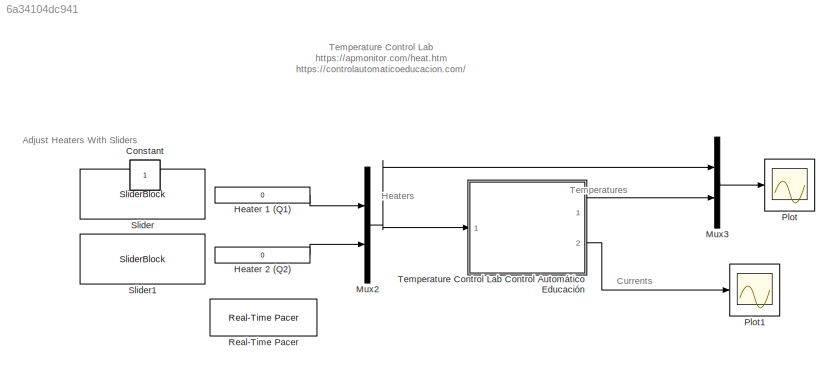
MODEL slx_6a34104dc941
KIND model
CONFIG AbsTol = auto
CONFIG EnableMultiTasking = on
CONFIG FixedStep = auto
CONFIG MaxStep = auto
CONFIG MinStep = auto
CONFIG RelTol = 1e-3
CONFIG SampleTimeConstraint = Unconstrained
CONFIG Solver = VariableStepAuto
CONFIG SolverName = VariableStepAuto
CONFIG StartFcn = clear all
CONFIG StartTime = 0.0
CONFIG StopTime = 500
BLOCK [Constant] 1
  IOType = siggen
BLOCK [Constant] Constant
  IOType = siggen
BLOCK [Constant] Heater 1 (Q1)
  Value = 0
BLOCK [Constant] Heater 2 (Q2)
  Value = 0
BLOCK [Mux] Mux2
  DisplayOption = bar
  Inputs = 2
  Ports = [2, 1]
BLOCK [Mux] Mux3
  DisplayOption = bar
  Inputs = 2
  Ports = [2, 1]
BLOCK [Scope] Plot
  Floating = off
  NumInputPorts = 1
  Ports = [1]
  ScopeSpecificationString = Simulink.scopes.TimeScopeBlockCfg('CurrentConfiguration', extmgr.ConfigurationSet(extmgr.Configuration('Core','General UI',true),extmgr.Configuration('Core','Source UI',true),extmgr.Configuration('Sources','WiredSimulink',true,'DataLoggingLimitDataPoints',true,'DataLoggingSaveFormat','Array','DataLoggingDecimation','1','DataLoggingDecimateData',true),extmgr.Configuration('Visuals','Time Domain',tr...<+1917ch>
BLOCK [Scope] Plot1
  Floating = off
  NumInputPorts = 1
  Ports = [1]
  ScopeSpecificationString = Simulink.scopes.TimeScopeBlockCfg('CurrentConfiguration', extmgr.ConfigurationSet(extmgr.Configuration('Core','General UI',true),extmgr.Configuration('Core','Source UI',true),extmgr.Configuration('Sources','WiredSimulink',true,'DataLoggingLimitDataPoints',true,'DataLoggingSaveFormat','Array','DataLoggingDecimation','1','DataLoggingDecimateData',true,'DataLoggingVariableName','ScopeData1'),extmgr.C...<+1830ch>
BLOCK [Reference] Real-Time Pacer  REF=realtime_pacer_lib/Real-Time Pacer
  Ports = []
  SourceBlock = realtime_pacer_lib/Real-Time Pacer
  SourceType = RealTime_Pacer
BLOCK [SliderBlock] Slider
  TickInterval = 20
BLOCK [SliderBlock] Slider1
  TickInterval = 20
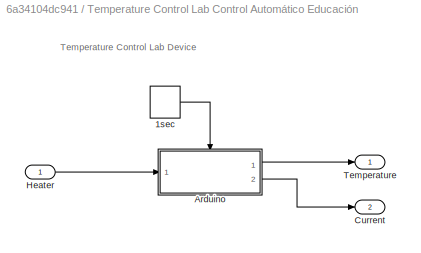
BLOCK [SubSystem] Temperature Control Lab Control Automático Educación
  Ports = [1, 2]
  RequestExecContextInheritance = off
BLOCK [DiscretePulseGenerator] Temperature Control Lab Control Automático Educación/1sec
  Period = 1
  Ports = [0, 1]
  PulseType = Time based
  PulseWidth = 50
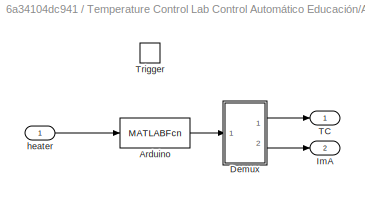
BLOCK [SubSystem] Temperature Control Lab Control Automático Educación/Arduino
  Ports = [1, 2, 0, 1]
  RequestExecContextInheritance = off
  TreatAsAtomicUnit = on
BLOCK [MATLABFcn] Temperature Control Lab Control Automático Educación/Arduino/Arduino
  MATLABFcn = arduino_tclab
  Ports = [1, 1]
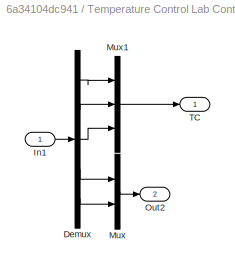
BLOCK [SubSystem] Temperature Control Lab Control Automático Educación/Arduino/Demux
  Ports = [1, 2]
  RequestExecContextInheritance = off
BLOCK [Demux] Temperature Control Lab Control Automático Educación/Arduino/Demux/Demux
  Outputs = 5
  Ports = [1, 5]
BLOCK [Inport] Temperature Control Lab Control Automático Educación/Arduino/Demux/In1
BLOCK [Mux] Temperature Control Lab Control Automático Educación/Arduino/Demux/Mux
  DisplayOption = bar
  Inputs = 2
  Ports = [2, 1]
BLOCK [Mux] Temperature Control Lab Control Automático Educación/Arduino/Demux/Mux1
  DisplayOption = bar
  Inputs = 3
  Ports = [3, 1]
BLOCK [Outport] Temperature Control Lab Control Automático Educación/Arduino/Demux/Out2
  Port = 2
BLOCK [Outport] Temperature Control Lab Control Automático Educación/Arduino/Demux/TC
BLOCK [Outport] Temperature Control Lab Control Automático Educación/Arduino/ImA
  InitialOutput = [0 0]
  Port = 2
  VectorParamsAs1DForOutWhenUnconnected = off
BLOCK [Outport] Temperature Control Lab Control Automático Educación/Arduino/TC
  InitialOutput = [25 25 25]
  VectorParamsAs1DForOutWhenUnconnected = off
BLOCK [TriggerPort] Temperature Control Lab Control Automático Educación/Arduino/Trigger
  Ports = []
  StatesWhenEnabling = held
  VariantControl = Variant
BLOCK [Inport] Temperature Control Lab Control Automático Educación/Arduino/heater
  LatchByDelayingOutsideSignal = on
BLOCK [Outport] Temperature Control Lab Control Automático Educación/Current
  Port = 2
  VectorParamsAs1DForOutWhenUnconnected = off
BLOCK [Inport] Temperature Control Lab Control Automático Educación/Heater
BLOCK [Outport] Temperature Control Lab Control Automático Educación/Temperature
  VectorParamsAs1DForOutWhenUnconnected = off
ANNOTATION (root): Currents
ANNOTATION (root): Temperature Control Lab https://apmonitor.com/heat.htm https://controlautomaticoeducacion.com/
ANNOTATION (root): Adjust Heaters With Sliders
ANNOTATION (root): Heaters
ANNOTATION (root): Temperatures
ANNOTATION Temperature Control Lab Control Automático Educación: Temperature Control Lab Device
LINE Heater 1 (Q1):1 -> Mux2:1
LINE Heater 2 (Q2):1 -> Mux2:2
NET Mux2:1 -> Mux3:1, Temperature Control Lab Control Automático Educación:1
LINE Mux3:1 -> Plot:1
LINE Temperature Control Lab Control Automático Educación/1sec:1 -> Temperature Control Lab Control Automático Educación/Arduino:trigger
LINE Temperature Control Lab Control Automático Educación/Arduino/Arduino:1 -> Temperature Control Lab Control Automático Educación/Arduino/Demux:1
LINE Temperature Control Lab Control Automático Educación/Arduino/Demux/Demux:1 -> Temperature Control Lab Control Automático Educación/Arduino/Demux/Mux1:1
LINE Temperature Control Lab Control Automático Educación/Arduino/Demux/Demux:2 -> Temperature Control Lab Control Automático Educación/Arduino/Demux/Mux1:2
LINE Temperature Control Lab Control Automático Educación/Arduino/Demux/Demux:3 -> Temperature Control Lab Control Automático Educación/Arduino/Demux/Mux1:3
LINE Temperature Control Lab Control Automático Educación/Arduino/Demux/Demux:4 -> Temperature Control Lab Control Automático Educación/Arduino/Demux/Mux:1
LINE Temperature Control Lab Control Automático Educación/Arduino/Demux/Demux:5 -> Temperature Control Lab Control Automático Educación/Arduino/Demux/Mux:2
LINE Temperature Control Lab Control Automático Educación/Arduino/Demux/In1:1 -> Temperature Control Lab Control Automático Educación/Arduino/Demux/Demux:1
LINE Temperature Control Lab Control Automático Educación/Arduino/Demux/Mux1:1 -> Temperature Control Lab Control Automático Educación/Arduino/Demux/TC:1
LINE Temperature Control Lab Control Automático Educación/Arduino/Demux/Mux:1 -> Temperature Control Lab Control Automático Educación/Arduino/Demux/Out2:1
LINE Temperature Control Lab Control Automático Educación/Arduino/Demux:1 -> Temperature Control Lab Control Automático Educación/Arduino/TC:1
LINE Temperature Control Lab Control Automático Educación/Arduino/Demux:2 -> Temperature Control Lab Control Automático Educación/Arduino/ImA:1
LINE Temperature Control Lab Control Automático Educación/Arduino/heater:1 -> Temperature Control Lab Control Automático Educación/Arduino/Arduino:1
LINE Temperature Control Lab Control Automático Educación/Arduino:1 -> Temperature Control Lab Control Automático Educación/Temperature:1
LINE Temperature Control Lab Control Automático Educación/Arduino:2 -> Temperature Control Lab Control Automático Educación/Current:1
LINE Temperature Control Lab Control Automático Educación/Heater:1 -> Temperature Control Lab Control Automático Educación/Arduino:1
LINE Temperature Control Lab Control Automático Educación:1 -> Mux3:2
LINE Temperature Control Lab Control Automático Educación:2 -> Plot1:1
note: NET lines group one-source signal fan-out (src -> all destinations, sorted); 1:1 wires keep LINE
